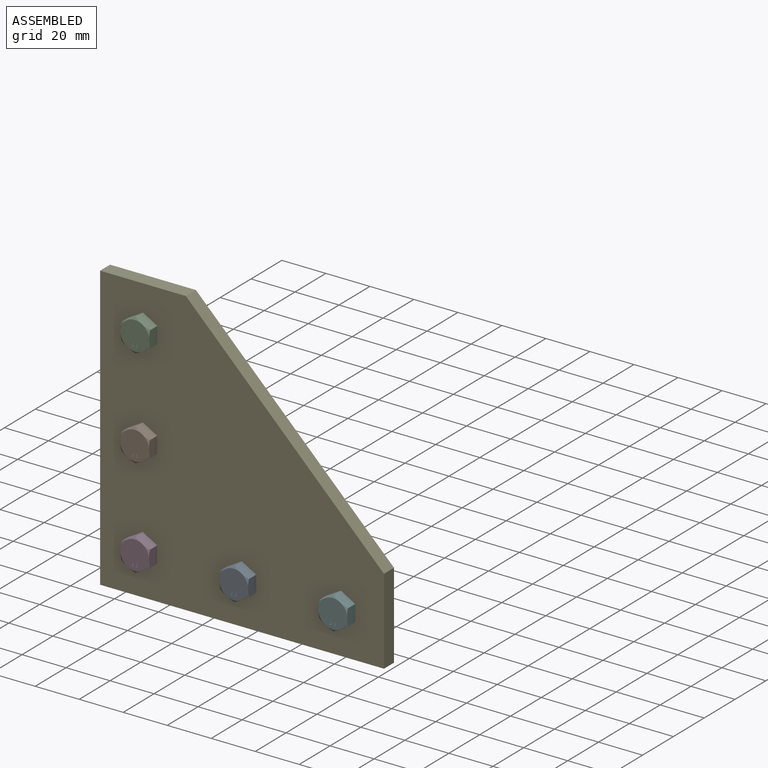
[diagram: assembled view]
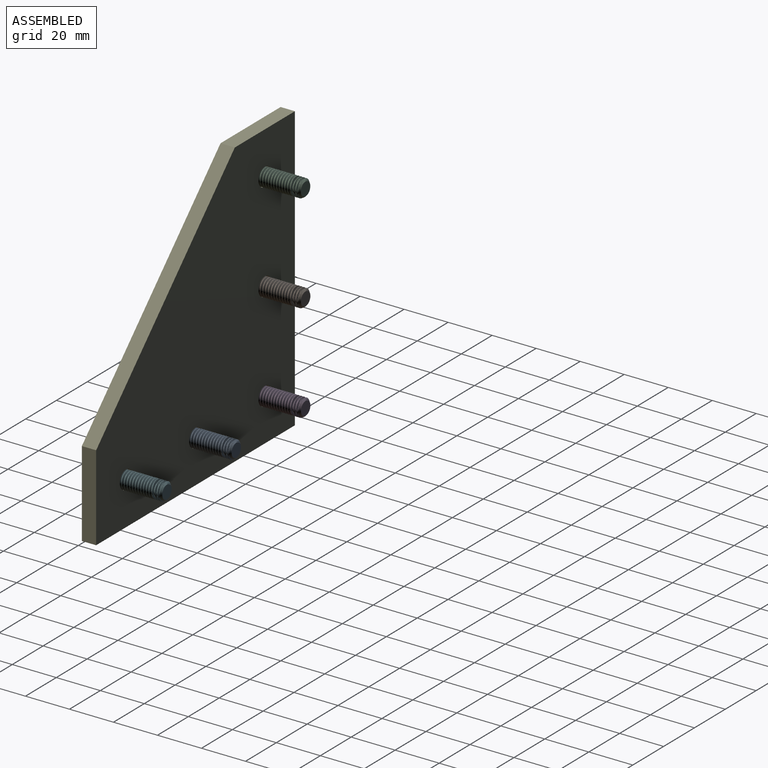
[diagram: assembled view, second angle]
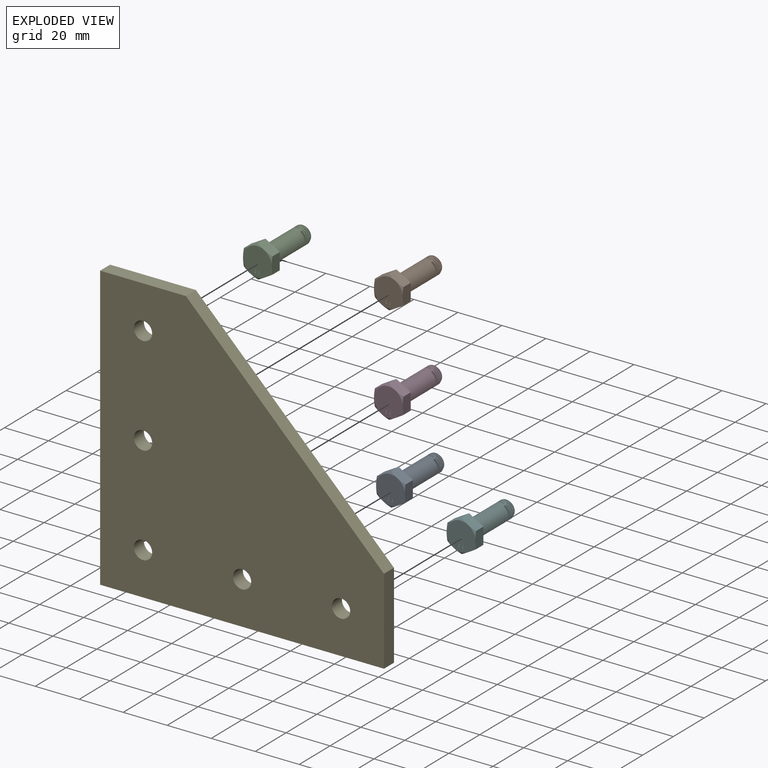
[diagram: exploded view]
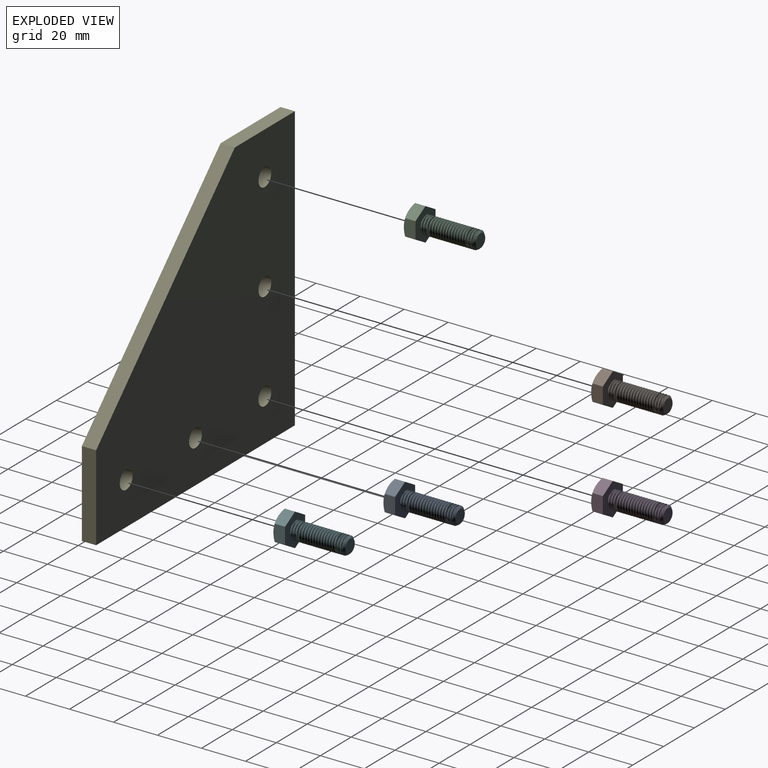
[diagram: exploded view, second angle]
ASSEMBLY  parts=6 mates=5
PART A: 63 faces, bbox 31.1x15.6x15.6 mm
  f0: cone r=3.06mm half-angle=45deg, axis (-1,0,0), area 16.1mm2, adj f1,f9,f10,f11,f12
  f1: cylinder r=4mm len=24.06mm, axis (1,0,0), area 75.6mm2, adj f0,f11,f12,f13
  f2: plane 13x13mm, normal (-1,0,0), area 130.3mm2, adj f14,f15,f16,f17,f18,f19,f20,f21
  f3: plane 8.12x5.92mm, normal (0,0,-1), area 38.3mm2, adj f4,f8,f13,f16,f17
  f4: plane 7.12x5.92mm, normal (0,-0.87,-0.5), area 38.3mm2, adj f3,f5,f13,f15,f16
  f5: plane 7.12x5.92mm, normal (0,-0.87,0.5), area 38.3mm2, adj f4,f6,f13,f14,f15
  f6: plane 8.12x5.92mm, normal (0,0,1), area 38.3mm2, adj f5,f7,f13,f14,f19
  f7: plane 7.12x5.92mm, normal (0,0.87,0.5), area 38.3mm2, adj f6,f8,f13,f18,f19
  f8: plane 7.12x5.92mm, normal (0,0.87,-0.5), area 38.3mm2, adj f3,f7,f13,f17,f18
  f9: plane 6.13x6.13mm, normal (1,0,0), area 29.5mm2, adj f0
  f10: cylinder r=3.19mm len=24.87mm, axis (1,0,0), area 165.3mm2, adj f0,f11,f12,f13
  f11: bspline ~25.34x8mm, area 416.7mm2, adj f0,f1,f10,f13
  f12: bspline ~25.63x8mm, area 416.2mm2, adj f0,f1,f10,f13
  f13: plane 15.5x13.49mm, normal (1,0,0), area 105.5mm2, adj f1,f3,f4,f5,f6,f7,f8,f10
  f14: cone r=6.5mm half-angle=60deg, axis (1,0,0), area 4.2mm2, adj f2,f5,f6
  f15: cone r=6.5mm half-angle=60deg, axis (1,0,0), area 4.2mm2, adj f2,f4,f5
  f16: cone r=6.5mm half-angle=60deg, axis (1,0,0), area 4.2mm2, adj f2,f3,f4
  f17: cone r=6.5mm half-angle=60deg, axis (1,0,0), area 4.2mm2, adj f2,f3,f8
  f18: cone r=6.5mm half-angle=60deg, axis (1,0,0), area 4.2mm2, adj f2,f7,f8
  f19: cone r=6.5mm half-angle=60deg, axis (1,0,0), area 4.2mm2, adj f2,f6,f7
  f20: extruded ~0.39x0.29mm, area 0.1mm2, adj f2,f21,f27,f28
  f21: extruded ~0.31x0.25mm, area 0.1mm2, adj f2,f20,f22,f28
  f22: extruded ~0.43x0.39mm, area 0.2mm2, adj f2,f21,f23,f28
  f23: extruded ~0.44x0.39mm, area 0.2mm2, adj f2,f22,f24,f28
  f24: extruded ~0.3x0.25mm, area 0.1mm2, adj f2,f23,f25,f28
  f25: extruded ~0.4x0.29mm, area 0.1mm2, adj f2,f24,f26,f28
  f26: extruded ~0.49x0.47mm, area 0.2mm2, adj f2,f25,f27,f28
  f27: extruded ~0.49x0.47mm, area 0.2mm2, adj f2,f20,f26,f28
  f28: plane 1.56x0.99mm, normal (-1,0,0), area 0.8mm2, adj f20,f21,f22,f23,f24,f25,f26,f27
  f29: extruded ~0.25x0.24mm, area 0.1mm2, adj f28,f30,f32,f37
  f30: extruded ~0.25x0.24mm, area 0.1mm2, adj f28,f29,f31,f37
  f31: extruded ~0.25x0.24mm, area 0.1mm2, adj f28,f30,f32,f37
  f32: extruded ~0.25x0.24mm, area 0.1mm2, adj f28,f29,f31,f37
  f33: extruded ~0.29x0.29mm, area 0.1mm2, adj f28,f34,f36,f38
  f34: extruded ~0.3x0.3mm, area 0.1mm2, adj f28,f33,f35,f38
  f35: extruded ~0.3x0.29mm, area 0.1mm2, adj f28,f34,f36,f38
  f36: extruded ~0.3x0.3mm, area 0.1mm2, adj f28,f33,f35,f38
  f37: plane 0.47x0.43mm, normal (-1,0,0), area 0.2mm2, adj f29,f30,f31,f32
  f38: plane 0.59x0.59mm, normal (-1,0,0), area 0.3mm2, adj f33,f34,f35,f36
  f39: plane 0.25x0.2mm, normal (0,1,0), area 0mm2, adj f2,f40,f42,f43
  f40: plane 0.25x0.2mm, normal (0,0,1), area 0mm2, adj f2,f39,f41,f43
  f41: plane 0.25x0.2mm, normal (0,-1,0), area 0mm2, adj f2,f40,f42,f43
  f42: plane 0.25x0.2mm, normal (0,0,-1), area 0mm2, adj f2,f39,f41,f43
  f43: plane 0.2x0.2mm, normal (-1,0,0), area 0mm2, adj f39,f40,f41,f42
  f44: extruded ~0.39x0.29mm, area 0.1mm2, adj f2,f45,f51,f52
  f45: extruded ~0.31x0.25mm, area 0.1mm2, adj f2,f44,f46,f52
  f46: extruded ~0.43x0.39mm, area 0.2mm2, adj f2,f45,f47,f52
  f47: extruded ~0.44x0.39mm, area 0.2mm2, adj f2,f46,f48,f52
  f48: extruded ~0.3x0.25mm, area 0.1mm2, adj f2,f47,f49,f52
  f49: extruded ~0.4x0.29mm, area 0.1mm2, adj f2,f48,f50,f52
  f50: extruded ~0.49x0.47mm, area 0.2mm2, adj f2,f49,f51,f52
  f51: extruded ~0.49x0.47mm, area 0.2mm2, adj f2,f44,f50,f52
  f52: plane 1.56x0.99mm, normal (-1,0,0), area 0.8mm2, adj f44,f45,f46,f47,f48,f49,f50,f51
  f53: extruded ~0.25x0.24mm, area 0.1mm2, adj f52,f54,f56,f61
  f54: extruded ~0.25x0.24mm, area 0.1mm2, adj f52,f53,f55,f61
  f55: extruded ~0.25x0.24mm, area 0.1mm2, adj f52,f54,f56,f61
  f56: extruded ~0.25x0.24mm, area 0.1mm2, adj f52,f53,f55,f61
  f57: extruded ~0.29x0.29mm, area 0.1mm2, adj f52,f58,f60,f62
  f58: extruded ~0.3x0.3mm, area 0.1mm2, adj f52,f57,f59,f62
  f59: extruded ~0.3x0.29mm, area 0.1mm2, adj f52,f58,f60,f62
  f60: extruded ~0.3x0.3mm, area 0.1mm2, adj f52,f57,f59,f62
  f61: plane 0.47x0.43mm, normal (-1,0,0), area 0.2mm2, adj f53,f54,f55,f56
  f62: plane 0.59x0.59mm, normal (-1,0,0), area 0.3mm2, adj f57,f58,f59,f60
PART B: same geometry as A
PART C: same geometry as A
PART D: same geometry as A
PART E: 12 faces, bbox 129x129x6.5 mm
  f0: cylinder r=4.15mm len=8.3mm, axis (0,0,-1), area 169.5mm2, adj f10,f11
  f1: cylinder r=4.15mm len=8.3mm, axis (0,0,-1), area 169.5mm2, adj f10,f11
  f2: cylinder r=4.15mm len=8.3mm, axis (0,0,-1), area 169.5mm2, adj f10,f11
  f3: cylinder r=4.15mm len=8.3mm, axis (0,0,-1), area 169.5mm2, adj f10,f11
  f4: cylinder r=4.15mm len=8.3mm, axis (0,0,-1), area 169.5mm2, adj f10,f11
  f5: plane 129x6.5mm, normal (-1,0,0), area 838.5mm2, adj f6,f9,f10,f11
  f6: plane 39x6.5mm, normal (0,1,0), area 253.5mm2, adj f5,f7,f10,f11
  f7: plane 90x90mm, normal (0.71,0.71,0), area 827.3mm2, adj f6,f8,f10,f11
  f8: plane 39x6.5mm, normal (1,0,0), area 253.5mm2, adj f7,f9,f10,f11
  f9: plane 129x6.5mm, normal (0,-1,0), area 838.5mm2, adj f5,f8,f10,f11
  f10: plane 129x129mm, normal (0,0,-1), area 12320.5mm2, adj f0,f1,f2,f3,f4,f5,f6,f7
  f11: plane 129x129mm, normal (0,0,1), area 12320.5mm2, adj f0,f1,f2,f3,f4,f5,f6,f7
PART F: same geometry as A
PLACE A rot(axis=(-0.58,-0.58,0.58),120deg) t=(-3.65,12.1,-33.78)mm
PLACE B rot(axis=(-0.58,-0.58,0.58),120deg) t=(-48.65,12.1,11.22)mm
PLACE C rot(axis=(-0.58,-0.58,0.58),120deg) t=(-48.59,12.1,56.36)mm
PLACE D rot(axis=(-0.58,-0.58,0.58),120deg) t=(-48.65,12.1,-33.78)mm
PLACE E rot(axis=(1,0,0),90deg) t=(-68.09,8.75,-53.14)mm
PLACE F rot(axis=(-0.58,-0.58,0.58),120deg) t=(41.35,12.1,-33.78)mm
MATE fastened C.f0 <-> E.f0  axis (0,1,0) through (-48.59,2.25,56.36)mm
MATE fastened F.f13 <-> E.f1  axis (0,1,0) through (41.41,2.25,-33.64)mm
MATE fastened A.f13 <-> E.f3  axis (0,1,0) through (-3.59,2.25,-33.64)mm
MATE fastened B.f13 <-> E.f4  axis (0,1,0) through (-48.59,2.25,11.36)mm
MATE fastened D.f13 <-> E.f2  axis (0,1,0) through (-48.59,2.25,-33.64)mm
